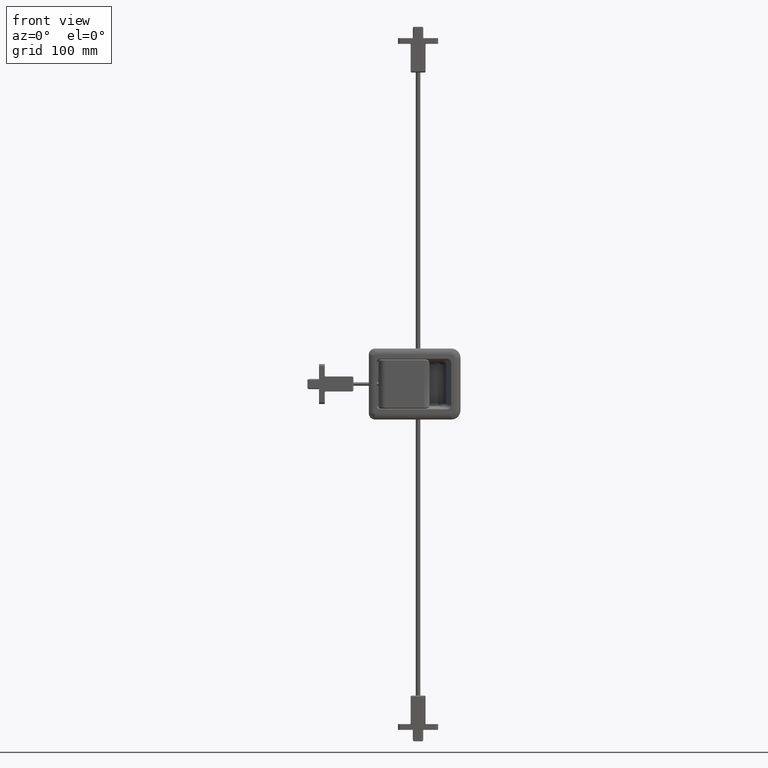
[diagram: clean part render]
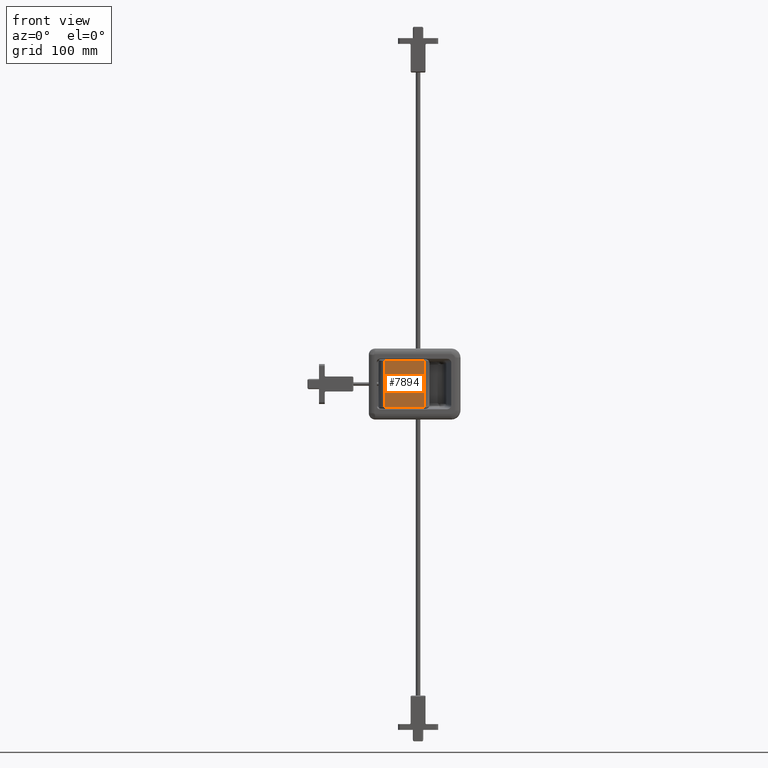
[diagram: same view with one face highlighted and labeled with its STEP entity id]
A machine part, front view. The second image highlights one B-rep face of the part: STEP entity #7894.
In plain terms, the highlighted face is a freeform B-spline surface patch.
Its self-contained STEP definition (entity closure, byte-faithful):
#6427=CARTESIAN_POINT('',(0.0,-6.250000000000000,-20.499999999981650));
#6428=VERTEX_POINT('',#6427);
#6478=CARTESIAN_POINT('',(34.500000000000000,-6.250000000000000,-20.499999999981650));
#6479=VERTEX_POINT('',#6478);
#6489=CARTESIAN_POINT('',(0.0,-6.250000000000000,-20.499999999981650));
#6490=CARTESIAN_POINT('',(34.500000000000000,-6.250000000000000,-20.499999999981650));
#6491=QUASI_UNIFORM_CURVE('',1,(#6489,#6490),.UNSPECIFIED.,.F.,.U.);
#6492=EDGE_CURVE('',#6428,#6479,#6491,.T.);
#6812=CARTESIAN_POINT('',(0.0,-6.250000000000000,20.500000000018300));
#6813=VERTEX_POINT('',#6812);
#7376=CARTESIAN_POINT('',(34.500000000000000,-6.250000000000000,20.500000000018300));
#7377=VERTEX_POINT('',#7376);
#7522=CARTESIAN_POINT('',(34.500000000000000,-6.250000000000000,20.500000000018300));
#7523=CARTESIAN_POINT('',(0.0,-6.250000000000000,20.500000000018300));
#7524=QUASI_UNIFORM_CURVE('',1,(#7522,#7523),.UNSPECIFIED.,.F.,.U.);
#7525=EDGE_CURVE('',#7377,#6813,#7524,.T.);
#7720=CARTESIAN_POINT('',(34.500000000000000,-6.250000000000000,-20.499999999981650));
#7721=CARTESIAN_POINT('',(34.500000000000000,-6.250000000000000,20.500000000018300));
#7722=QUASI_UNIFORM_CURVE('',1,(#7720,#7721),.UNSPECIFIED.,.F.,.U.);
#7723=EDGE_CURVE('',#6479,#7377,#7722,.T.);
#7879=CARTESIAN_POINT('',(36.223274933132309,-6.250000000000000,-22.547949920515698));
#7880=CARTESIAN_POINT('',(-1.723275858494415,-6.250000000000000,-22.547949920515698));
#7881=CARTESIAN_POINT('',(36.223274933132309,-6.250000000000000,22.547951020258040));
#7882=CARTESIAN_POINT('',(-1.723275858494415,-6.250000000000000,22.547951020258040));
#7883=B_SPLINE_SURFACE_WITH_KNOTS('',1,1,((#7879,#7881),(#7880,#7882)),.UNSPECIFIED.,.F.,.F.,.U.,(2,2),(2,2),(0.0,37.946550791626727),(0.0,45.095900940773753),.UNSPECIFIED.);
#7884=CARTESIAN_POINT('',(0.0,-6.250000000000000,20.500000000018300));
#7885=CARTESIAN_POINT('',(0.0,-6.250000000000000,-20.499999999981650));
#7886=QUASI_UNIFORM_CURVE('',1,(#7884,#7885),.UNSPECIFIED.,.F.,.U.);
#7887=EDGE_CURVE('',#6813,#6428,#7886,.T.);
#7888=ORIENTED_EDGE('',*,*,#7887,.T.);
#7889=ORIENTED_EDGE('',*,*,#6492,.T.);
#7890=ORIENTED_EDGE('',*,*,#7723,.T.);
#7891=ORIENTED_EDGE('',*,*,#7525,.T.);
#7892=EDGE_LOOP('',(#7888,#7889,#7890,#7891));
#7893=FACE_OUTER_BOUND('',#7892,.T.);
#7894=ADVANCED_FACE('',(#7893),#7883,.F.);